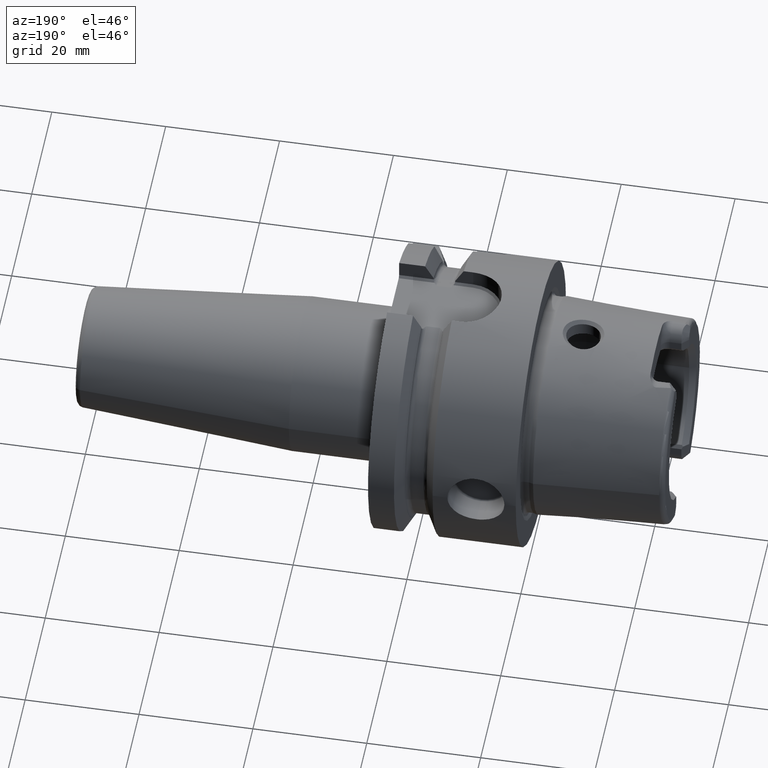
[diagram: clean part render]
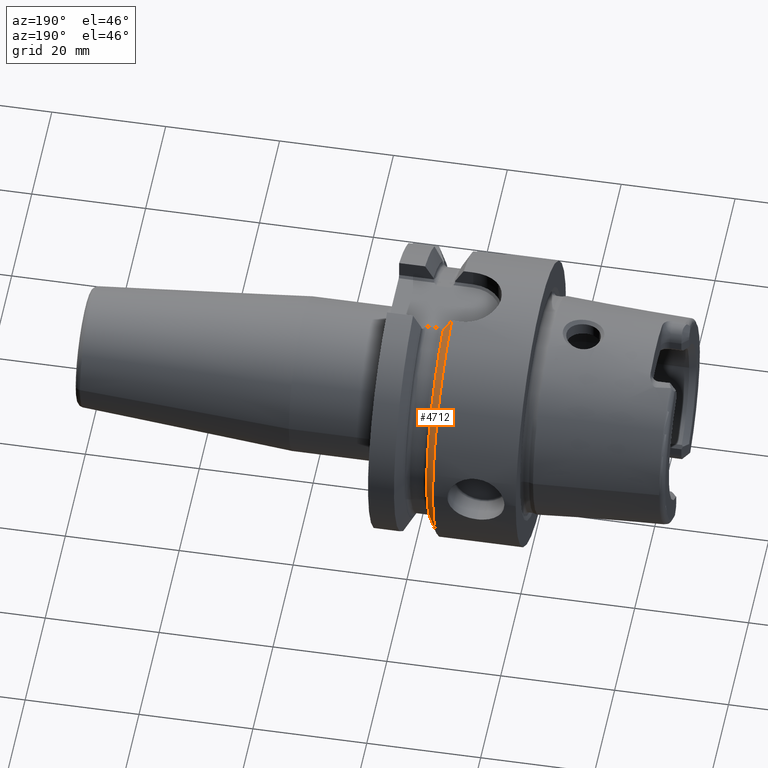
[diagram: same view with one face highlighted and labeled with its STEP entity id]
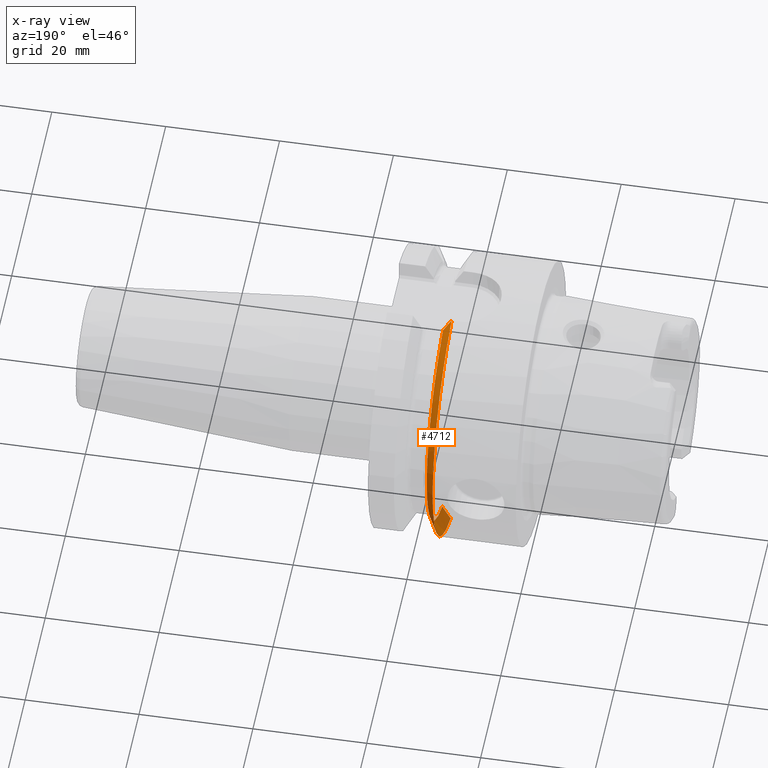
[diagram: x-ray of the same camera — body ghosted, the highlighted face saturated]
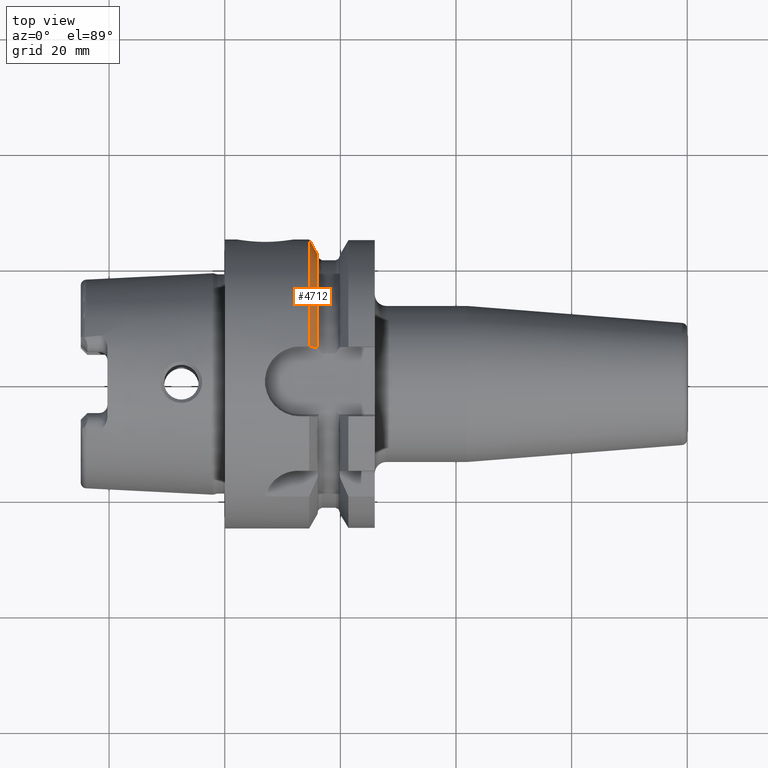
[diagram: same view with one face highlighted and labeled with its STEP entity id]
A machine part, auxiliary view. The second image highlights one B-rep face of the part: STEP entity #4712.
The next image is the same camera in x-ray: the body ghosted, the highlighted face saturated — about 13% of this face is hidden behind the body in this view.
A second angle (top view) of the same face is appended — the face is thin or edge-on in the first view.
In plain terms, the highlighted conical surface has half-angle 60 deg.
Its self-contained STEP definition (entity closure, byte-faithful):
#905=CARTESIAN_POINT('',(1.460806716851E1,0.E0,0.E0));
#906=DIRECTION('',(1.E0,0.E0,0.E0));
#907=DIRECTION('',(0.E0,1.E0,0.E0));
#908=AXIS2_PLACEMENT_3D('',#905,#906,#907);
#1139=CARTESIAN_POINT('',(1.460806716851E1,0.E0,0.E0));
#1140=DIRECTION('',(1.E0,0.E0,0.E0));
#1141=DIRECTION('',(0.E0,2.807E-1,-9.597955563556E-1));
#1142=AXIS2_PLACEMENT_3D('',#1139,#1140,#1141);
#1392=CARTESIAN_POINT('',(1.460806716851E1,7.0175E0,-2.399488890889E1));
#1393=CARTESIAN_POINT('',(1.478117030033E1,7.0175E0,-2.368250632149E1));
#1394=CARTESIAN_POINT('',(1.512156521149E1,7.0175E0,-2.306726652731E1));
#1395=CARTESIAN_POINT('',(1.561448175983E1,7.0175E0,-2.217337894395E1));
#1396=CARTESIAN_POINT('',(1.593174516263E1,7.0175E0,-2.159595049916E1));
#1397=CARTESIAN_POINT('',(1.60875E1,7.0175E0,-2.131192663117E1));
#1422=CARTESIAN_POINT('',(1.60875E1,0.E0,0.E0));
#1423=DIRECTION('',(1.E0,0.E0,0.E0));
#1424=DIRECTION('',(0.E0,3.127570026704E-1,-9.498331733945E-1));
#1425=AXIS2_PLACEMENT_3D('',#1422,#1423,#1424);
#1446=CARTESIAN_POINT('',(1.60875E1,6.0175E0,2.161557810313E1));
#1447=CARTESIAN_POINT('',(1.593105791815E1,6.0175E0,2.189684766575E1));
#1448=CARTESIAN_POINT('',(1.561287734067E1,6.0175E0,2.246811923109E1));
#1449=CARTESIAN_POINT('',(1.511991466436E1,6.0175E0,2.335091062741E1));
#1450=CARTESIAN_POINT('',(1.478046273423E1,6.0175E0,2.395734634398E1));
#1451=CARTESIAN_POINT('',(1.460806716851E1,6.0175E0,2.426498905316E1));
#2937=CARTESIAN_POINT('',(1.60875E1,6.0175E0,2.161557810313E1));
#2939=VERTEX_POINT('',#2937);
#2946=VERTEX_POINT('',#1451);
#2948=CARTESIAN_POINT('',(1.60875E1,7.0175E0,-2.131192663117E1));
#2950=VERTEX_POINT('',#2948);
#2956=VERTEX_POINT('',#1392);
#3108=CARTESIAN_POINT('',(1.460806716851E1,2.5E1,0.E0));
#3109=VERTEX_POINT('',#3108);
#4699=CARTESIAN_POINT('',(1.534778358426E1,0.E0,0.E0));
#4700=DIRECTION('',(-1.E0,0.E0,0.E0));
#4701=DIRECTION('',(0.E0,1.E0,0.E0));
#4702=AXIS2_PLACEMENT_3D('',#4699,#4700,#4701);
#4703=CONICAL_SURFACE('',#4702,2.371877358474E1,6.E1);
#4704=ORIENTED_EDGE('',*,*,#4210,.F.);
#4705=ORIENTED_EDGE('',*,*,#4342,.F.);
#4706=ORIENTED_EDGE('',*,*,#4676,.T.);
#4707=ORIENTED_EDGE('',*,*,#4500,.T.);
#4709=ORIENTED_EDGE('',*,*,#4708,.T.);
#4710=EDGE_LOOP('',(#4704,#4705,#4706,#4707,#4709));
#4711=FACE_OUTER_BOUND('',#4710,.F.);
#4712=ADVANCED_FACE('',(#4711),#4703,.T.);
#909=CIRCLE('',#908,2.5E1);
#1143=CIRCLE('',#1142,2.5E1);
#1398=B_SPLINE_CURVE_WITH_KNOTS('',3,(#1392,#1393,#1394,#1395,#1396,#1397),
.UNSPECIFIED.,.F.,.F.,(4,1,1,4),(0.E0,3.333333333333E-1,6.666666666667E-1,1.E0),
.UNSPECIFIED.);
#1426=CIRCLE('',#1425,2.243754716948E1);
#1452=B_SPLINE_CURVE_WITH_KNOTS('',3,(#1446,#1447,#1448,#1449,#1450,#1451),
.UNSPECIFIED.,.F.,.F.,(4,1,1,4),(0.E0,3.333333333333E-1,6.666666666667E-1,1.E0),
.UNSPECIFIED.);
#4210=EDGE_CURVE('',#3109,#2946,#909,.T.);
#4342=EDGE_CURVE('',#2956,#3109,#1143,.T.);
#4500=EDGE_CURVE('',#2950,#2939,#1426,.T.);
#4676=EDGE_CURVE('',#2956,#2950,#1398,.T.);
#4708=EDGE_CURVE('',#2939,#2946,#1452,.T.);